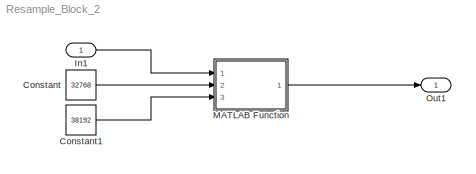
MODEL Resample_Block_2
KIND model
BLOCK [Constant] Constant
  SID = 6
  Value = 32768
BLOCK [Constant] Constant1
  SID = 7
  Value = 38192
BLOCK [Inport] In1
  IconDisplay = Port number
  SID = 2
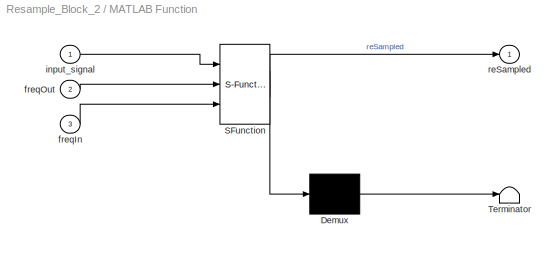
BLOCK [SubSystem] MATLAB Function
  ErrorFcn = Stateflow.Translate.translate
  PermitHierarchicalResolution = ExplicitOnly
  Ports = [3, 1]
  RequestExecContextInheritance = off
  SFBlockType = MATLAB Function
  SID = 1
  TreatAsAtomicUnit = on
  Variant = off
BLOCK [Demux] MATLAB Function/ Demux 
  Outputs = 1
  Ports = [1, 1]
  SID = 1::20
BLOCK [S-Function] MATLAB Function/ SFunction 
  EnableBusSupport = on
  FunctionName = sf_sfun
  PortCounts = [3 2]
  Ports = [3, 2]
  SFcnIsStateOwnerBlock = off
  SFunctionDeploymentMode = off
  SID = 1::19
  Tag = Stateflow S-Function Resample_Block_2 2
BLOCK [Terminator] MATLAB Function/ Terminator 
  SID = 1::21
BLOCK [Inport] MATLAB Function/freqIn
  IconDisplay = Port number
  Port = 3
  SID = 1::23
BLOCK [Inport] MATLAB Function/freqOut
  IconDisplay = Port number
  Port = 2
  SID = 1::22
BLOCK [Inport] MATLAB Function/input_signal
  IconDisplay = Port number
  SID = 1::1
BLOCK [Outport] MATLAB Function/reSampled
  IconDisplay = Port number
  SID = 1::5
BLOCK [Outport] Out1
  IconDisplay = Port number
  SID = 3
LINE Constant1:1 -> MATLAB Function:3
LINE Constant:1 -> MATLAB Function:2
LINE In1:1 -> MATLAB Function:1
LINE MATLAB Function/ Demux :1 -> MATLAB Function/ Terminator :1
LINE MATLAB Function/ SFunction :1 -> MATLAB Function/ Demux :1
LINE MATLAB Function/ SFunction :2 -> MATLAB Function/reSampled:1
LINE MATLAB Function/freqIn:1 -> MATLAB Function/ SFunction :3
LINE MATLAB Function/freqOut:1 -> MATLAB Function/ SFunction :2
LINE MATLAB Function/input_signal:1 -> MATLAB Function/ SFunction :1
LINE MATLAB Function:1 -> Out1:1
CHART MATLAB Function states=1 transitions=1
  STATE_LABEL 'eML_blk_kernel()'
